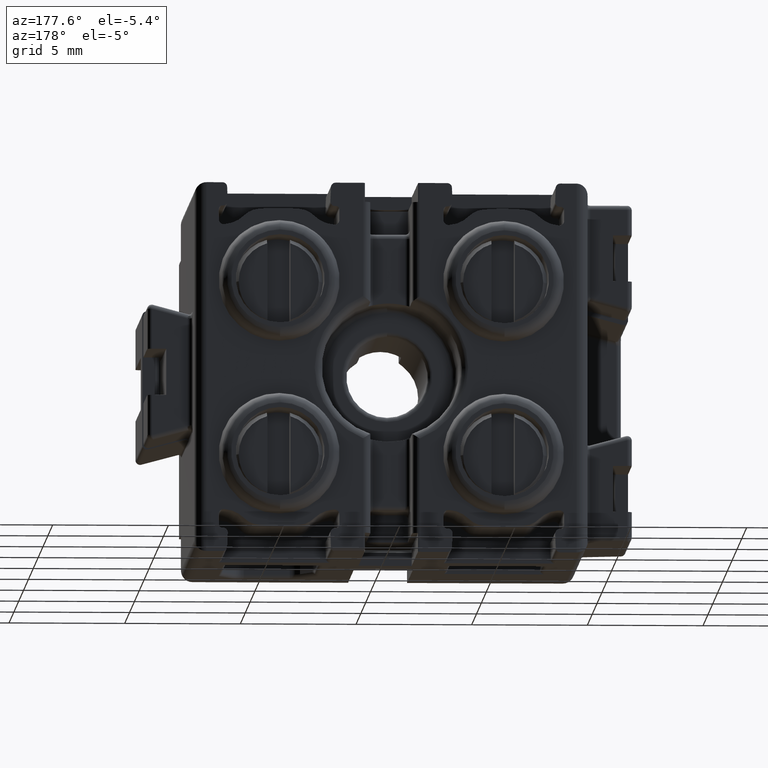
[diagram: clean part render]
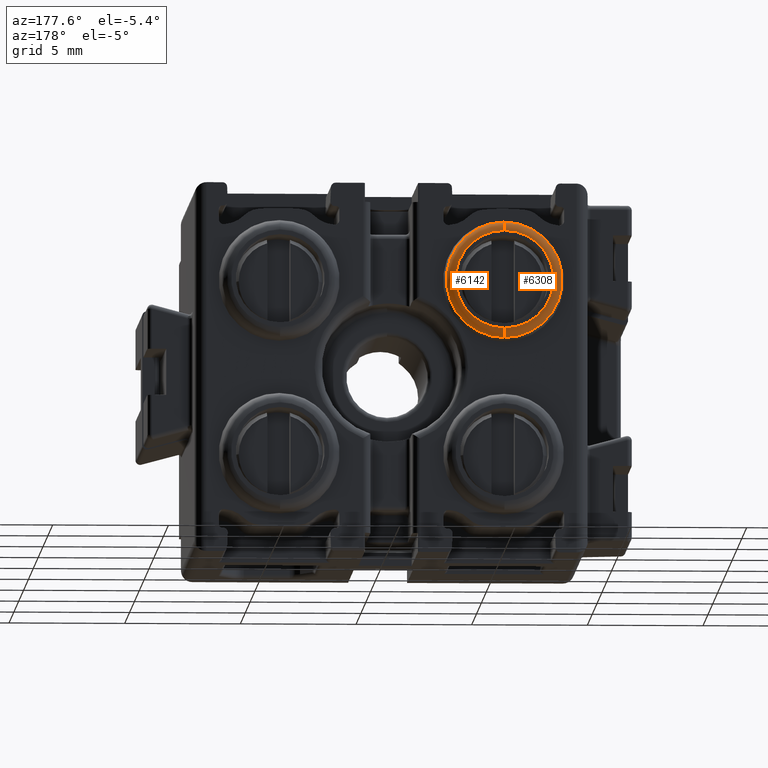
[diagram: same view with one multi-face feature highlighted, each face labeled with its STEP entity id]
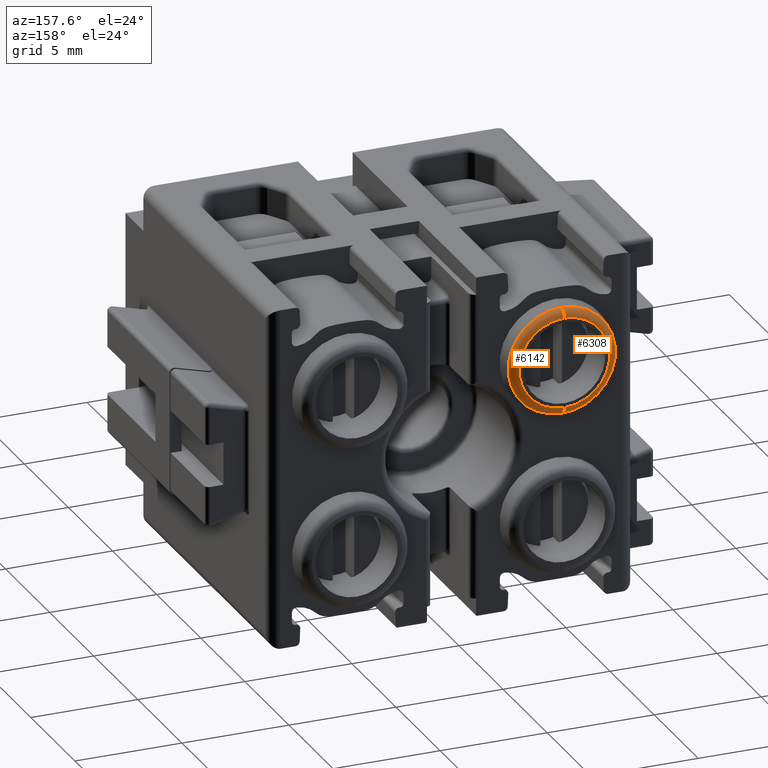
[diagram: same view with one multi-face feature highlighted, each face labeled with its STEP entity id]
A machine part, auxiliary view. The highlighted faces form ONE feature: a constant-radius fillet chain: 2 tangent blend faces with common blend radius 0.4 mm. The faces share edges in the B-rep.
A second angle (auxiliary view) of the same feature is appended — it is thin or edge-on in the first view.
Their STEP definitions:
[1] entity #6308 (Torus):
#218 = TOROIDAL_SURFACE ( 'NONE', #239, 2.117440270963305300, 0.4000000000000000200 ) ;
#239 = AXIS2_PLACEMENT_3D ( 'NONE', #8237, #8250, #8239 ) ;
#1626 = VERTEX_POINT ( 'NONE', #16965 ) ;
#1629 = VERTEX_POINT ( 'NONE', #16943 ) ;
#1632 = VERTEX_POINT ( 'NONE', #16959 ) ;
#1667 = VERTEX_POINT ( 'NONE', #17069 ) ;
#2393 = ORIENTED_EDGE ( 'NONE', *, *, #9648, .T. ) ;
#2406 = ORIENTED_EDGE ( 'NONE', *, *, #9506, .F. ) ;
#2436 = ORIENTED_EDGE ( 'NONE', *, *, #9629, .F. ) ;
#2491 = ORIENTED_EDGE ( 'NONE', *, *, #9508, .F. ) ;
#6308 = ADVANCED_FACE ( 'NONE', ( #8277 ), #218, .T. ) ;
#8237 = CARTESIAN_POINT ( 'NONE',  ( 14.80655536988763800, 43.94889991280934500, -6.422838019614300000 ) ) ;
#8239 = DIRECTION ( 'NONE',  ( 0.0000000000000000000, -2.793185071074504800E-014, 1.000000000000000000 ) ) ;
#8250 = DIRECTION ( 'NONE',  ( 0.0000000000000000000, 1.000000000000000000, 2.793185071074504800E-014 ) ) ;
#8277 = FACE_OUTER_BOUND ( 'NONE', #10396, .T. ) ;
#9506 = EDGE_CURVE ( 'NONE', #1629, #1626, #11777, .T. ) ;
#9508 = EDGE_CURVE ( 'NONE', #1632, #1667, #11698, .T. ) ;
#9629 = EDGE_CURVE ( 'NONE', #1626, #1632, #12234, .T. ) ;
#9648 = EDGE_CURVE ( 'NONE', #1629, #1667, #12290, .T. ) ;
#10396 = EDGE_LOOP ( 'NONE', ( #2436, #2406, #2393, #2491 ) ) ;
#11502 = DIRECTION ( 'NONE',  ( 0.0000000000000000000, -2.949317909532066100E-014, 1.000000000000000000 ) ) ;
#11531 = DIRECTION ( 'NONE',  ( 0.0000000000000000000, -1.000000000000000000, -2.793185071074504800E-014 ) ) ;
#11602 = DIRECTION ( 'NONE',  ( 0.0000000000000000000, 1.000000000000000000, 2.793185071074504800E-014 ) ) ;
#11608 = CARTESIAN_POINT ( 'NONE',  ( 14.80655536988763800, 44.04752212630455000, -6.422838019614300000 ) ) ;
#11620 = CARTESIAN_POINT ( 'NONE',  ( 14.80655536988763800, 44.34889991280935100, -6.422838019614290200 ) ) ;
#11627 = DIRECTION ( 'NONE',  ( 0.0000000000000000000, 2.769916088034427900E-014, -1.000000000000000000 ) ) ;
#11698 = CIRCLE ( 'NONE', #11706, 2.117440270963304900 ) ;
#11706 = AXIS2_PLACEMENT_3D ( 'NONE', #11620, #11602, #11502 ) ;
#11717 = AXIS2_PLACEMENT_3D ( 'NONE', #11608, #11531, #11627 ) ;
#11777 = CIRCLE ( 'NONE', #11717, 2.505091736851554600 ) ;
#12234 = CIRCLE ( 'NONE', #12236, 0.3999999999999993000 ) ;
#12236 = AXIS2_PLACEMENT_3D ( 'NONE', #12782, #12789, #12750 ) ;
#12290 = CIRCLE ( 'NONE', #12342, 0.4000000000000001900 ) ;
#12342 = AXIS2_PLACEMENT_3D ( 'NONE', #12858, #12888, #12881 ) ;
#12750 = DIRECTION ( 'NONE',  ( 0.0000000000000000000, 0.0000000000000000000, -1.000000000000000000 ) ) ;
#12782 = CARTESIAN_POINT ( 'NONE',  ( 14.80655536988763800, 43.94889991280940900, -8.540278290577605300 ) ) ;
#12789 = DIRECTION ( 'NONE',  ( 1.000000000000000000, -3.420665156717564800E-030, 1.224646799147353200E-016 ) ) ;
#12858 = CARTESIAN_POINT ( 'NONE',  ( 14.80655536988763800, 43.94889991280928900, -4.305397748650994700 ) ) ;
#12881 = DIRECTION ( 'NONE',  ( 0.0000000000000000000, 0.0000000000000000000, 1.000000000000000000 ) ) ;
#12888 = DIRECTION ( 'NONE',  ( -1.000000000000000000, 0.0000000000000000000, 0.0000000000000000000 ) ) ;
#16943 = CARTESIAN_POINT ( 'NONE',  ( 14.80655536988763800, 44.04752212630447900, -3.917746282762745400 ) ) ;
#16959 = CARTESIAN_POINT ( 'NONE',  ( 14.80655536988763800, 44.34889991280941500, -8.540278290577594700 ) ) ;
#16965 = CARTESIAN_POINT ( 'NONE',  ( 14.80655536988763800, 44.04752212630462100, -8.927929756465854200 ) ) ;
#17069 = CARTESIAN_POINT ( 'NONE',  ( 14.80655536988763800, 44.34889991280928700, -4.305397748650985800 ) ) ;
[2] entity #6142 (Torus):
#3 = AXIS2_PLACEMENT_3D ( 'NONE', #7296, #7278, #7297 ) ;
#59 = TOROIDAL_SURFACE ( 'NONE', #3, 2.117440270963305300, 0.4000000000000000200 ) ;
#1626 = VERTEX_POINT ( 'NONE', #16965 ) ;
#1629 = VERTEX_POINT ( 'NONE', #16943 ) ;
#1632 = VERTEX_POINT ( 'NONE', #16959 ) ;
#1667 = VERTEX_POINT ( 'NONE', #17069 ) ;
#6142 = ADVANCED_FACE ( 'NONE', ( #7309 ), #59, .T. ) ;
#7278 = DIRECTION ( 'NONE',  ( 0.0000000000000000000, 1.000000000000000000, 2.793185071074504800E-014 ) ) ;
#7296 = CARTESIAN_POINT ( 'NONE',  ( 14.80655536988763800, 43.94889991280934500, -6.422838019614300000 ) ) ;
#7297 = DIRECTION ( 'NONE',  ( 0.0000000000000000000, -2.793185071074504800E-014, 1.000000000000000000 ) ) ;
#7309 = FACE_OUTER_BOUND ( 'NONE', #12427, .T. ) ;
#9600 = EDGE_CURVE ( 'NONE', #1667, #1632, #11983, .T. ) ;
#9629 = EDGE_CURVE ( 'NONE', #1626, #1632, #12234, .T. ) ;
#9634 = EDGE_CURVE ( 'NONE', #1626, #1629, #12102, .T. ) ;
#9648 = EDGE_CURVE ( 'NONE', #1629, #1667, #12290, .T. ) ;
#9924 = ORIENTED_EDGE ( 'NONE', *, *, #9600, .F. ) ;
#9948 = ORIENTED_EDGE ( 'NONE', *, *, #9648, .F. ) ;
#9955 = ORIENTED_EDGE ( 'NONE', *, *, #9634, .F. ) ;
#9960 = ORIENTED_EDGE ( 'NONE', *, *, #9629, .T. ) ;
#11983 = CIRCLE ( 'NONE', #12066, 2.117440270963304900 ) ;
#12066 = AXIS2_PLACEMENT_3D ( 'NONE', #12540, #12545, #12533 ) ;
#12102 = CIRCLE ( 'NONE', #12239, 2.505091736851554600 ) ;
#12234 = CIRCLE ( 'NONE', #12236, 0.3999999999999993000 ) ;
#12236 = AXIS2_PLACEMENT_3D ( 'NONE', #12782, #12789, #12750 ) ;
#12239 = AXIS2_PLACEMENT_3D ( 'NONE', #12808, #12753, #12756 ) ;
#12290 = CIRCLE ( 'NONE', #12342, 0.4000000000000001900 ) ;
#12342 = AXIS2_PLACEMENT_3D ( 'NONE', #12858, #12888, #12881 ) ;
#12427 = EDGE_LOOP ( 'NONE', ( #9955, #9960, #9924, #9948 ) ) ;
#12533 = DIRECTION ( 'NONE',  ( 0.0000000000000000000, -2.949317909532066100E-014, 1.000000000000000000 ) ) ;
#12540 = CARTESIAN_POINT ( 'NONE',  ( 14.80655536988763800, 44.34889991280935100, -6.422838019614290200 ) ) ;
#12545 = DIRECTION ( 'NONE',  ( 0.0000000000000000000, 1.000000000000000000, 2.793185071074504800E-014 ) ) ;
#12750 = DIRECTION ( 'NONE',  ( 0.0000000000000000000, 0.0000000000000000000, -1.000000000000000000 ) ) ;
#12753 = DIRECTION ( 'NONE',  ( 0.0000000000000000000, -1.000000000000000000, -2.793185071074504800E-014 ) ) ;
#12756 = DIRECTION ( 'NONE',  ( 0.0000000000000000000, 2.769916088034427900E-014, -1.000000000000000000 ) ) ;
#12782 = CARTESIAN_POINT ( 'NONE',  ( 14.80655536988763800, 43.94889991280940900, -8.540278290577605300 ) ) ;
#12789 = DIRECTION ( 'NONE',  ( 1.000000000000000000, -3.420665156717564800E-030, 1.224646799147353200E-016 ) ) ;
#12808 = CARTESIAN_POINT ( 'NONE',  ( 14.80655536988763800, 44.04752212630455000, -6.422838019614300000 ) ) ;
#12858 = CARTESIAN_POINT ( 'NONE',  ( 14.80655536988763800, 43.94889991280928900, -4.305397748650994700 ) ) ;
#12881 = DIRECTION ( 'NONE',  ( 0.0000000000000000000, 0.0000000000000000000, 1.000000000000000000 ) ) ;
#12888 = DIRECTION ( 'NONE',  ( -1.000000000000000000, 0.0000000000000000000, 0.0000000000000000000 ) ) ;
#16943 = CARTESIAN_POINT ( 'NONE',  ( 14.80655536988763800, 44.04752212630447900, -3.917746282762745400 ) ) ;
#16959 = CARTESIAN_POINT ( 'NONE',  ( 14.80655536988763800, 44.34889991280941500, -8.540278290577594700 ) ) ;
#16965 = CARTESIAN_POINT ( 'NONE',  ( 14.80655536988763800, 44.04752212630462100, -8.927929756465854200 ) ) ;
#17069 = CARTESIAN_POINT ( 'NONE',  ( 14.80655536988763800, 44.34889991280928700, -4.305397748650985800 ) ) ;